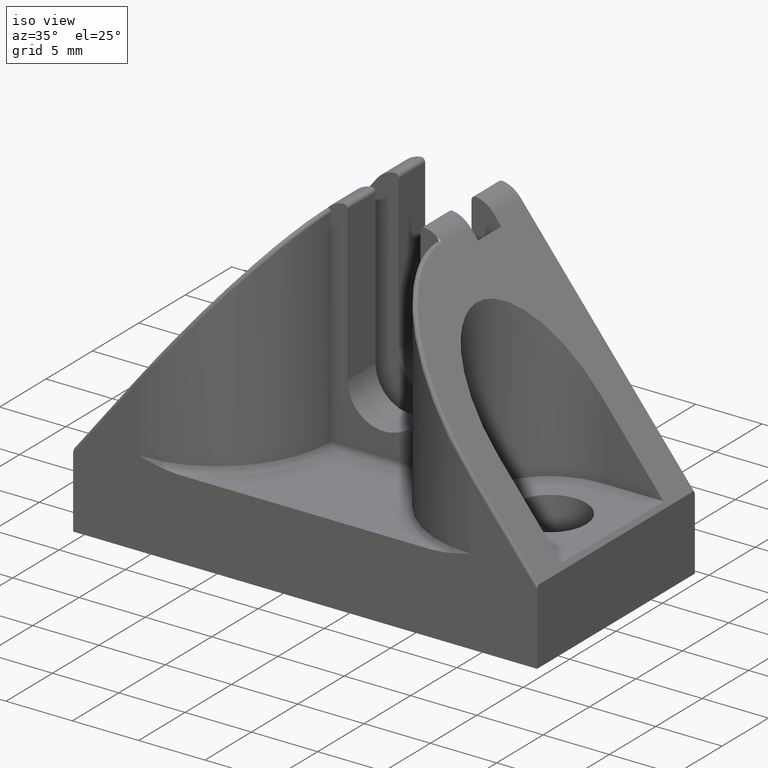
[diagram: clean part render]
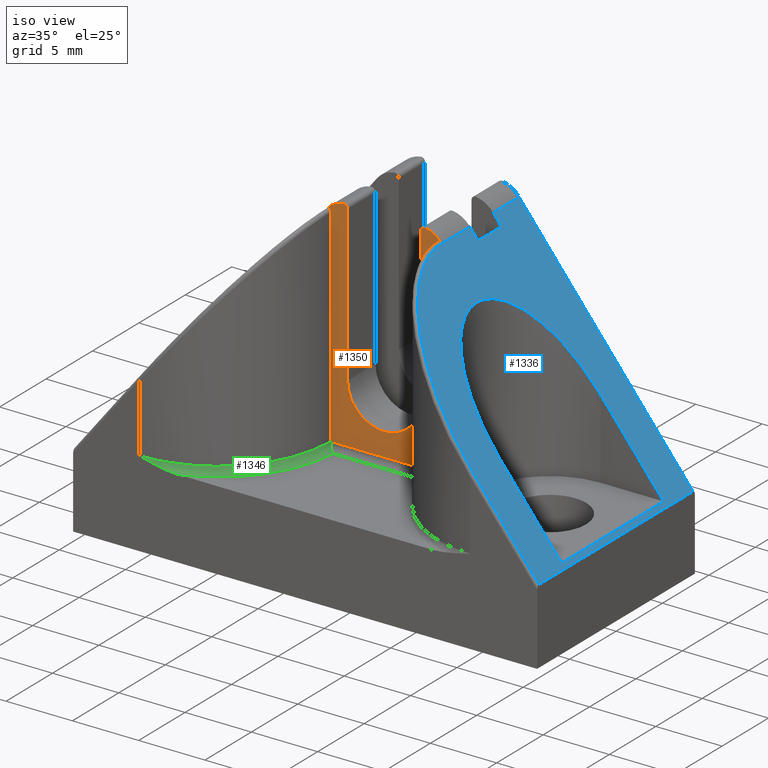
[diagram: same view with three faces highlighted in distinct colors, each labeled with its STEP entity id]
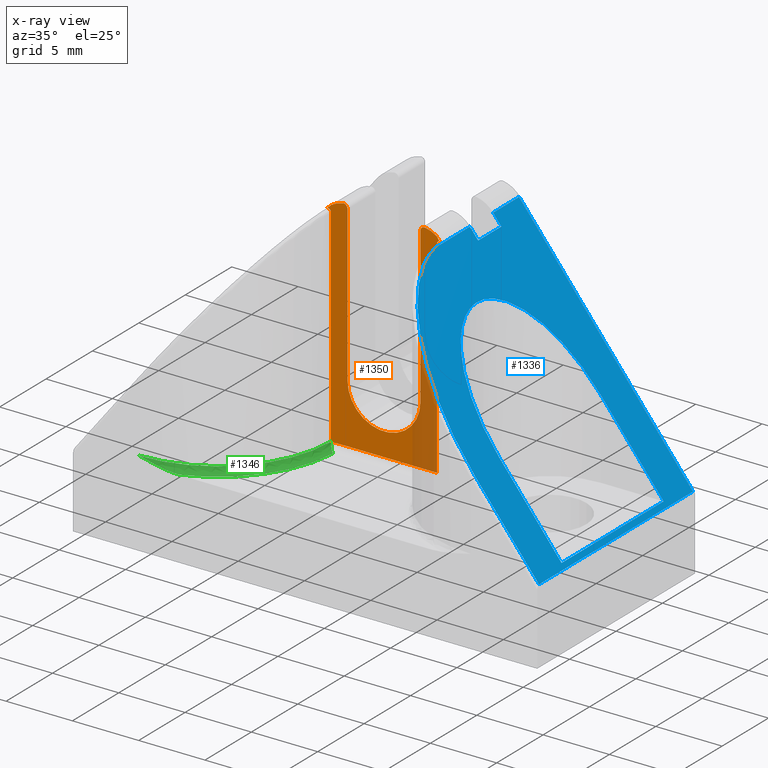
[diagram: x-ray of the same camera — body ghosted, the three highlighted faces saturated]
A machine part, iso view with three faces highlighted in distinct colors.
The next image is the same camera in x-ray (body ghosted, the three faces saturated) — at least one of them is partly hidden behind the body in this view.
Their STEP definitions:

[orange] entity #1350 — the highlighted planar face has unit normal (0, 1, 0).
#16=B_SPLINE_CURVE_WITH_KNOTS('',3,(#2112,#2113,#2114,#2115,#2116,#2117,
#2118,#2119,#2120,#2121,#2122,#2123,#2124,#2125,#2126,#2127,#2128,#2129,
#2130,#2131,#2132,#2133,#2134,#2135,#2136,#2137,#2138,#2139,#2140,#2141,
#2142,#2143,#2144,#2145,#2146,#2147,#2148,#2149,#2150,#2151,#2152,#2153,
#2154,#2155,#2156,#2157),.UNSPECIFIED.,.F.,.F.,(4,3,3,3,3,3,3,3,3,3,3,3,
3,3,3,4),(0.,0.0515835369594768,0.0613108971198886,0.091839566359771,0.122514240516175,
0.17631840629407,0.235197563098057,0.241804414812378,0.245047180752854,
0.301644032906494,0.353852926474957,0.367571882050692,0.391769263267377,
0.428741323403689,0.476665563281763,0.490066458344634),.UNSPECIFIED.);
#21=B_SPLINE_CURVE_WITH_KNOTS('',3,(#2640,#2641,#2642,#2643,#2644,#2645,
#2646,#2647,#2648,#2649,#2650,#2651,#2652,#2653,#2654,#2655,#2656,#2657,
#2658,#2659,#2660,#2661,#2662,#2663,#2664,#2665,#2666,#2667,#2668,#2669,
#2670,#2671,#2672,#2673,#2674,#2675,#2676,#2677,#2678,#2679,#2680,#2681,
#2682,#2683,#2684,#2685),.UNSPECIFIED.,.F.,.F.,(4,3,3,3,3,3,3,3,3,3,3,3,
3,3,3,4),(0.,0.0515664612205248,0.0612769238793133,0.091821903620932,0.122446111840318,
0.176255297236443,0.235139198247807,0.241786752073326,0.244910810754444,
0.301589247821051,0.353855952278427,0.367367635653073,0.391751600528659,
0.428504171241136,0.476526545953214,0.48979478608267),.UNSPECIFIED.);
#81=PLANE('',#1492);
#141=FACE_OUTER_BOUND('',#225,.T.);
#225=EDGE_LOOP('',(#1112,#1113,#1114,#1115,#1116,#1117,#1118,#1119,#1120,
#1121,#1122,#1123));
#258=CIRCLE('',#1401,0.299599217095519);
#260=CIRCLE('',#1405,2.74999999998909);
#262=CIRCLE('',#1409,0.299543686002835);
#272=CIRCLE('',#1433,1.99227204643511);
#275=CIRCLE('',#1439,2.00265221536747);
#338=LINE('',#1950,#440);
#342=LINE('',#1962,#444);
#403=LINE('',#3577,#505);
#408=LINE('',#3673,#510);
#409=LINE('',#3676,#511);
#440=VECTOR('',#1557,11.6839999999534);
#444=VECTOR('',#1569,11.6840115200562);
#505=VECTOR('',#1790,8.00020000026234);
#510=VECTOR('',#1803,15.6477603507119);
#511=VECTOR('',#1808,15.6489176530045);
#539=VERTEX_POINT('',#1938);
#541=VERTEX_POINT('',#1942);
#543=VERTEX_POINT('',#1948);
#545=VERTEX_POINT('',#1954);
#547=VERTEX_POINT('',#1960);
#549=VERTEX_POINT('',#1966);
#572=VERTEX_POINT('',#2096);
#574=VERTEX_POINT('',#2111);
#582=VERTEX_POINT('',#2625);
#583=VERTEX_POINT('',#2639);
#622=VERTEX_POINT('',#3531);
#627=VERTEX_POINT('',#3561);
#665=EDGE_CURVE('',#539,#541,#258,.T.);
#668=EDGE_CURVE('',#541,#543,#338,.T.);
#671=EDGE_CURVE('',#543,#545,#260,.T.);
#674=EDGE_CURVE('',#545,#547,#342,.T.);
#677=EDGE_CURVE('',#547,#549,#262,.T.);
#710=EDGE_CURVE('',#572,#574,#16,.T.);
#714=EDGE_CURVE('',#549,#574,#272,.T.);
#723=EDGE_CURVE('',#583,#582,#21,.T.);
#726=EDGE_CURVE('',#539,#582,#275,.T.);
#795=EDGE_CURVE('',#622,#627,#403,.T.);
#803=EDGE_CURVE('',#622,#583,#408,.T.);
#804=EDGE_CURVE('',#627,#572,#409,.T.);
#1112=ORIENTED_EDGE('',*,*,#804,.F.);
#1113=ORIENTED_EDGE('',*,*,#795,.F.);
#1114=ORIENTED_EDGE('',*,*,#803,.T.);
#1115=ORIENTED_EDGE('',*,*,#723,.T.);
#1116=ORIENTED_EDGE('',*,*,#726,.F.);
#1117=ORIENTED_EDGE('',*,*,#665,.T.);
#1118=ORIENTED_EDGE('',*,*,#668,.T.);
#1119=ORIENTED_EDGE('',*,*,#671,.T.);
#1120=ORIENTED_EDGE('',*,*,#674,.T.);
#1121=ORIENTED_EDGE('',*,*,#677,.T.);
#1122=ORIENTED_EDGE('',*,*,#714,.T.);
#1123=ORIENTED_EDGE('',*,*,#710,.F.);
#1350=ADVANCED_FACE('',(#141),#81,.F.);
#1401=AXIS2_PLACEMENT_3D('',#1944,#1551,#1552);
#1405=AXIS2_PLACEMENT_3D('',#1956,#1563,#1564);
#1409=AXIS2_PLACEMENT_3D('',#1968,#1575,#1576);
#1433=AXIS2_PLACEMENT_3D('',#2175,#1645,#1646);
#1439=AXIS2_PLACEMENT_3D('',#2701,#1660,#1661);
#1492=AXIS2_PLACEMENT_3D('',#3675,#1806,#1807);
#1551=DIRECTION('center_axis',(0.,-1.,0.));
#1552=DIRECTION('ref_axis',(0.139172969097552,0.,0.990268087273629));
#1557=DIRECTION('',(0.,0.,-1.));
#1563=DIRECTION('center_axis',(0.,1.,0.));
#1564=DIRECTION('ref_axis',(-1.,0.,0.));
#1569=DIRECTION('',(0.,0.,1.));
#1575=DIRECTION('center_axis',(0.,-1.,0.));
#1576=DIRECTION('ref_axis',(1.,0.,0.));
#1645=DIRECTION('center_axis',(0.,-1.,0.));
#1646=DIRECTION('ref_axis',(-0.784751051077607,0.,0.619811090440137));
#1660=DIRECTION('center_axis',(0.,1.,0.));
#1661=DIRECTION('ref_axis',(0.783976784921792,0.,0.620790142241072));
#1790=DIRECTION('',(-1.,0.,0.));
#1803=DIRECTION('',(0.,0.,1.));
#1806=DIRECTION('center_axis',(0.,1.,0.));
#1807=DIRECTION('ref_axis',(0.,0.,1.));
#1808=DIRECTION('',(0.,0.,1.));
#1938=CARTESIAN_POINT('',(-9.40916095850935,5.0000000103E-5,22.9806698900124));
#1942=CARTESIAN_POINT('',(-9.75045628818725,5.0000000103E-5,22.6839863463506));
#1944=CARTESIAN_POINT('Origin',(-9.45085707109183,5.0000000103E-5,22.6839863463506));
#1948=CARTESIAN_POINT('',(-9.75045628818725,5.0000000102E-5,10.9999863463972));
#1950=CARTESIAN_POINT('',(-9.75045628818725,5.0000000103E-5,22.6839863463506));
#1954=CARTESIAN_POINT('',(-15.2504562881654,5.0000000102E-5,10.9999863463972));
#1956=CARTESIAN_POINT('Origin',(-12.5004562881763,5.0000000102E-5,10.9999863463972));
#1960=CARTESIAN_POINT('',(-15.2504562881659,5.0000000103E-5,22.6839978664534));
#1962=CARTESIAN_POINT('',(-15.2504562881654,5.0000000102E-5,10.9999863463972));
#1966=CARTESIAN_POINT('',(-15.5909549561825,5.0000000103E-5,22.9807285680549));
#1968=CARTESIAN_POINT('Origin',(-15.5499999741687,5.0000000103E-5,22.6839978664534));
#2096=CARTESIAN_POINT('',(-16.5001000000906,5.00004013524431E-5,22.1489157063757));
#2111=CARTESIAN_POINT('',(-16.8542660643739,5.0000000102E-5,22.2763238171688));
#2112=CARTESIAN_POINT('Ctrl Pts',(-16.5001000000953,5.0000000103053E-5,
22.148915706376));
#2113=CARTESIAN_POINT('Ctrl Pts',(-16.5001000000967,5.00000001022286E-5,
22.1659636453831));
#2114=CARTESIAN_POINT('Ctrl Pts',(-16.5023331335791,4.99998304713899E-5,
22.183190630861));
#2115=CARTESIAN_POINT('Ctrl Pts',(-16.5067096027143,4.99999335324173E-5,
22.199865664115));
#2116=CARTESIAN_POINT('Ctrl Pts',(-16.50753489493,4.99999529671399E-5,22.2030101567905));
#2117=CARTESIAN_POINT('Ctrl Pts',(-16.5084362644401,4.99999827736273E-5,
22.2061349710763));
#2118=CARTESIAN_POINT('Ctrl Pts',(-16.5094129168669,5.00000268851428E-5,
22.2092351588684));
#2119=CARTESIAN_POINT('Ctrl Pts',(-16.5124780751839,5.00001653261839E-5,
22.2189648908947));
#2120=CARTESIAN_POINT('Ctrl Pts',(-16.5162851562881,5.000044251486E-5,22.2284519248075));
#2121=CARTESIAN_POINT('Ctrl Pts',(-16.5208026729912,5.0001374224741E-5,
22.2375943600103));
#2122=CARTESIAN_POINT('Ctrl Pts',(-16.5253417949481,5.00023103905719E-5,
22.2467805193755));
#2123=CARTESIAN_POINT('Ctrl Pts',(-16.5305822741439,5.00027976795366E-5,
22.2555883132228));
#2124=CARTESIAN_POINT('Ctrl Pts',(-16.5364843629972,5.00028112556875E-5,
22.263937111026));
#2125=CARTESIAN_POINT('Ctrl Pts',(-16.5468367783309,5.00028350686047E-5,
22.2785811166562));
#2126=CARTESIAN_POINT('Ctrl Pts',(-16.5592212469659,5.0001442514182E-5,
22.2918131944879));
#2127=CARTESIAN_POINT('Ctrl Pts',(-16.5730849437574,5.00003721780167E-5,
22.3032187419622));
#2128=CARTESIAN_POINT('Ctrl Pts',(-16.5882563113546,4.99992008841215E-5,
22.3157000992783));
#2129=CARTESIAN_POINT('Ctrl Pts',(-16.6052001235232,4.99984314644391E-5,
22.3259958742043));
#2130=CARTESIAN_POINT('Ctrl Pts',(-16.6232502587301,4.99994523110383E-5,
22.3335503728055));
#2131=CARTESIAN_POINT('Ctrl Pts',(-16.6252756710018,4.99995668606085E-5,
22.3343980658558));
#2132=CARTESIAN_POINT('Ctrl Pts',(-16.6273150579578,4.99997029525478E-5,
22.3352112137034));
#2133=CARTESIAN_POINT('Ctrl Pts',(-16.6293675090724,4.9999861782778E-5,
22.3359890060366));
#2134=CARTESIAN_POINT('Ctrl Pts',(-16.6303748903269,4.99999397396148E-5,
22.336370761008));
#2135=CARTESIAN_POINT('Ctrl Pts',(-16.6313854998172,5.00000188521963E-5,
22.3367440293331));
#2136=CARTESIAN_POINT('Ctrl Pts',(-16.6323992332488,5.00000981093044E-5,
22.3371087109772));
#2137=CARTESIAN_POINT('Ctrl Pts',(-16.6500921911133,5.00014814045862E-5,
22.3434735962246));
#2138=CARTESIAN_POINT('Ctrl Pts',(-16.6687369652157,5.00029538243691E-5,
22.3472271259673));
#2139=CARTESIAN_POINT('Ctrl Pts',(-16.6875734707007,5.00040675263182E-5,
22.3483848975819));
#2140=CARTESIAN_POINT('Ctrl Pts',(-16.7049495803719,5.0005094882864E-5,
22.3494529070683));
#2141=CARTESIAN_POINT('Ctrl Pts',(-16.7224906419556,5.00057913688689E-5,
22.3483114665289));
#2142=CARTESIAN_POINT('Ctrl Pts',(-16.7395803255148,5.00055949047959E-5,
22.3449343237921));
#2143=CARTESIAN_POINT('Ctrl Pts',(-16.7440709897202,5.00055432798388E-5,
22.3440469104031));
#2144=CARTESIAN_POINT('Ctrl Pts',(-16.748530298736,5.00054298476402E-5,
22.3430049294425));
#2145=CARTESIAN_POINT('Ctrl Pts',(-16.7529465969108,5.00052447933248E-5,
22.3418074861574));
#2146=CARTESIAN_POINT('Ctrl Pts',(-16.7607360273754,5.00049183960425E-5,
22.3396954455219));
#2147=CARTESIAN_POINT('Ctrl Pts',(-16.7683917488528,5.00043684545248E-5,
22.337099797268));
#2148=CARTESIAN_POINT('Ctrl Pts',(-16.7758739325814,5.0003560715445E-5,
22.3340377483737));
#2149=CARTESIAN_POINT('Ctrl Pts',(-16.7873062336344,5.00023265414837E-5,
22.3293591323349));
#2150=CARTESIAN_POINT('Ctrl Pts',(-16.7982904416499,5.00019042621349E-5,
22.32360739929));
#2151=CARTESIAN_POINT('Ctrl Pts',(-16.808661449125,5.00014744039998E-5,
22.316887172995));
#2152=CARTESIAN_POINT('Ctrl Pts',(-16.8221046451,5.00009172096129E-5,22.3081762238131));
#2153=CARTESIAN_POINT('Ctrl Pts',(-16.8345152210434,5.00003423392273E-5,
22.2978379042557));
#2154=CARTESIAN_POINT('Ctrl Pts',(-16.8454487672305,5.00001049241557E-5,
22.2862876569018));
#2155=CARTESIAN_POINT('Ctrl Pts',(-16.8485060782174,5.00000385365725E-5,
22.2830578998283));
#2156=CARTESIAN_POINT('Ctrl Pts',(-16.8514481749034,5.00000001024965E-5,
22.2797335131327));
#2157=CARTESIAN_POINT('Ctrl Pts',(-16.8542660643739,5.00000001019998E-5,
22.2763238171688));
#2175=CARTESIAN_POINT('Origin',(-15.3185624149878,5.0000000102E-5,21.0071657465292));
#2625=CARTESIAN_POINT('',(-8.1459073378287,5.0000000102E-5,22.2753760444293));
#2639=CARTESIAN_POINT('',(-8.49989999980917,5.00004013525835E-5,22.1477584040847));
#2640=CARTESIAN_POINT('Ctrl Pts',(-8.49989999980434,5.00000001030232E-5,
22.1477584040851));
#2641=CARTESIAN_POINT('Ctrl Pts',(-8.49989999980293,5.00000001021751E-5,
22.1648007557525));
#2642=CARTESIAN_POINT('Ctrl Pts',(-8.497668380429,4.99998254502754E-5,22.1820220429063));
#2643=CARTESIAN_POINT('Ctrl Pts',(-8.4932947701384,4.99999289782604E-5,
22.1986918957996));
#2644=CARTESIAN_POINT('Ctrl Pts',(-8.49247117708187,4.99999484735798E-5,
22.201830990091));
#2645=CARTESIAN_POINT('Ctrl Pts',(-8.49157176830396,4.99999785051056E-5,
22.2049504797342));
#2646=CARTESIAN_POINT('Ctrl Pts',(-8.49059733368376,5.00000230579975E-5,
22.2080454417498));
#2647=CARTESIAN_POINT('Ctrl Pts',(-8.48753217739003,5.00001632023889E-5,
22.2177808740755));
#2648=CARTESIAN_POINT('Ctrl Pts',(-8.4837242620355,5.00004448707077E-5,
22.2272734809051));
#2649=CARTESIAN_POINT('Ctrl Pts',(-8.47920511638601,5.00013859501667E-5,
22.2364211869844));
#2650=CARTESIAN_POINT('Ctrl Pts',(-8.47467424884201,5.00023294706034E-5,
22.2455926206561));
#2651=CARTESIAN_POINT('Ctrl Pts',(-8.46944427584904,5.00028247307526E-5,
22.2543870308446));
#2652=CARTESIAN_POINT('Ctrl Pts',(-8.46355473128819,5.00028463796868E-5,
22.2627241776592));
#2653=CARTESIAN_POINT('Ctrl Pts',(-8.45320633002004,5.00028844185925E-5,
22.2773732120246));
#2654=CARTESIAN_POINT('Ctrl Pts',(-8.44082507656962,5.00015013030239E-5,
22.2906107426485));
#2655=CARTESIAN_POINT('Ctrl Pts',(-8.42696372452981,5.0000430532524E-5,
22.3020217848995));
#2656=CARTESIAN_POINT('Ctrl Pts',(-8.41179511576187,4.99992587782286E-5,
22.3145089964675));
#2657=CARTESIAN_POINT('Ctrl Pts',(-8.39485306546235,4.99984769926659E-5,
22.3248107325373));
#2658=CARTESIAN_POINT('Ctrl Pts',(-8.37680356872637,4.99994682790523E-5,
22.332370835358));
#2659=CARTESIAN_POINT('Ctrl Pts',(-8.37476591498715,4.99995801879017E-5,
22.3332243146548));
#2660=CARTESIAN_POINT('Ctrl Pts',(-8.37271410180622,4.9999713685031E-5,
22.3340428228983));
#2661=CARTESIAN_POINT('Ctrl Pts',(-8.37064905621355,4.99998699818608E-5,
22.3348255342224));
#2662=CARTESIAN_POINT('Ctrl Pts',(-8.36967857537503,4.99999434345142E-5,
22.3351933742086));
#2663=CARTESIAN_POINT('Ctrl Pts',(-8.36870509588795,5.00000181293578E-5,
22.3355533368876));
#2664=CARTESIAN_POINT('Ctrl Pts',(-8.36772871099204,5.00000931535686E-5,
22.3359053327085));
#2665=CARTESIAN_POINT('Ctrl Pts',(-8.35001458474654,5.00014542851976E-5,
22.3422914396983));
#2666=CARTESIAN_POINT('Ctrl Pts',(-8.33134391071393,5.00029687204072E-5,
22.3460595219125));
#2667=CARTESIAN_POINT('Ctrl Pts',(-8.31248036209075,5.00041255354368E-5,
22.3472243757583));
#2668=CARTESIAN_POINT('Ctrl Pts',(-8.29508511317542,5.00051923063711E-5,
22.3482985597839));
#2669=CARTESIAN_POINT('Ctrl Pts',(-8.27752405181213,5.00059292765666E-5,
22.347158415492));
#2670=CARTESIAN_POINT('Ctrl Pts',(-8.26041583437638,5.00057285311684E-5,
22.3437770981475));
#2671=CARTESIAN_POINT('Ctrl Pts',(-8.25599311785931,5.00056766356398E-5,
22.3429029797231));
#2672=CARTESIAN_POINT('Ctrl Pts',(-8.25160084809794,5.00055619490493E-5,
22.3418788946202));
#2673=CARTESIAN_POINT('Ctrl Pts',(-8.24725016277168,5.00053743724695E-5,
22.3407039823222));
#2674=CARTESIAN_POINT('Ctrl Pts',(-8.23939866453577,5.00050358609302E-5,
22.3385836676721));
#2675=CARTESIAN_POINT('Ctrl Pts',(-8.23168249650268,5.00044591946302E-5,
22.3359721729562));
#2676=CARTESIAN_POINT('Ctrl Pts',(-8.22414245056067,5.00036049539144E-5,
22.3328870896297));
#2677=CARTESIAN_POINT('Ctrl Pts',(-8.21277776589709,5.00023174052126E-5,
22.328237118073));
#2678=CARTESIAN_POINT('Ctrl Pts',(-8.2018557517529,5.00018697909732E-5,
22.3225268779396));
#2679=CARTESIAN_POINT('Ctrl Pts',(-8.19153849606653,5.00014360834902E-5,
22.3158589285325));
#2680=CARTESIAN_POINT('Ctrl Pts',(-8.17805755829902,5.00008693840016E-5,
22.3071463198965));
#2681=CARTESIAN_POINT('Ctrl Pts',(-8.1656114643377,5.00003210074339E-5,
22.2967984743031));
#2682=CARTESIAN_POINT('Ctrl Pts',(-8.15464763499973,5.00000973534386E-5,
22.2852324460935));
#2683=CARTESIAN_POINT('Ctrl Pts',(-8.15161840703533,5.00000355594325E-5,
22.2820368348696));
#2684=CARTESIAN_POINT('Ctrl Pts',(-8.14870206125562,5.00000001025078E-5,
22.2787483595003));
#2685=CARTESIAN_POINT('Ctrl Pts',(-8.14590733782919,5.00000001020031E-5,
22.2753760444289));
#2701=CARTESIAN_POINT('Origin',(-9.68787601339227,5.0000000102E-5,20.9975073112255));
#3531=CARTESIAN_POINT('',(-8.49989999981881,5.0000000102E-5,6.49999805322659));
#3561=CARTESIAN_POINT('',(-16.5001000000811,5.0000000102E-5,6.49999805322659));
#3577=CARTESIAN_POINT('',(-8.49989999981881,5.0000000102E-5,6.49999805322659));
#3673=CARTESIAN_POINT('',(-8.49989999981881,5.0000000102E-5,6.49999805322659));
#3675=CARTESIAN_POINT('Origin',(-8.49989999981881,5.0000000102E-5,5.99999805322659));
#3676=CARTESIAN_POINT('',(-16.5001000000811,5.0000000102E-5,6.49999805322659));

[blue] entity #1336 — the highlighted planar face has unit normal (0.784, 0, 0.6208).
#23=B_SPLINE_CURVE_WITH_KNOTS('',3,(#2837,#2838,#2839,#2840,#2841,#2842,
#2843,#2844,#2845,#2846,#2847,#2848,#2849,#2850,#2851,#2852,#2853,#2854,
#2855,#2856,#2857,#2858,#2859,#2860,#2861,#2862,#2863,#2864,#2865,#2866,
#2867,#2868,#2869,#2870,#2871,#2872,#2873,#2874,#2875,#2876,#2877,#2878,
#2879,#2880,#2881,#2882,#2883,#2884,#2885,#2886,#2887,#2888,#2889,#2890,
#2891,#2892,#2893,#2894,#2895,#2896,#2897,#2898,#2899,#2900,#2901,#2902,
#2903,#2904,#2905,#2906,#2907,#2908,#2909,#2910,#2911,#2912,#2913,#2914,
#2915,#2916,#2917,#2918,#2919,#2920,#2921,#2922,#2923,#2924,#2925,#2926,
#2927,#2928,#2929,#2930,#2931,#2932,#2933,#2934,#2935,#2936,#2937,#2938,
#2939,#2940,#2941,#2942,#2943,#2944,#2945,#2946,#2947,#2948),
 .UNSPECIFIED.,.F.,.F.,(4,3,3,3,3,3,3,3,3,3,3,3,3,3,3,3,3,3,3,3,3,3,3,3,
3,3,3,3,3,3,3,3,3,3,3,3,3,4),(-17.4686220538162,-16.7309776322777,-16.4310766051136,
-16.2828543611951,-15.6166622455787,-15.3935223622807,-15.0970866685741,
-14.415872493435,-13.911318975953,-13.3184286298419,-12.7255512833319,-12.0973200163173,
-11.5397835907109,-11.2433353663514,-10.643796376755,-10.3540158980898,
-9.76113205177928,-9.16824820546875,-8.57536435915822,-7.98248051284769,
-7.39679090175992,-7.09313546007442,-6.79671282022662,-6.23862860181666,
-5.66347688245699,-5.61094512760556,-5.01797511675675,-4.47394462959306,
-4.4251774349845,-3.873040816014,-3.3012525966851,-3.23940974236343,-2.94295392390265,
-2.39427380689413,-2.05364204974237,-1.90541783009847,-1.3866213953771,
-0.867874357121302),.UNSPECIFIED.);
#53=FACE_BOUND('',#211,.T.);
#58=ELLIPSE('',#1419,8.85959622381051,5.49994999997799);
#78=PLANE('',#1475);
#127=FACE_OUTER_BOUND('',#210,.T.);
#210=EDGE_LOOP('',(#1040,#1041,#1042,#1043,#1044,#1045,#1046,#1047,#1048));
#211=EDGE_LOOP('',(#1049,#1050,#1051,#1052));
#351=LINE('',#1993,#453);
#355=LINE('',#2005,#457);
#357=LINE('',#2008,#459);
#360=LINE('',#2022,#462);
#368=LINE('',#2700,#470);
#369=LINE('',#2705,#471);
#377=LINE('',#3079,#479);
#382=LINE('',#3092,#484);
#399=LINE('',#3152,#501);
#400=LINE('',#3157,#502);
#401=LINE('',#3158,#503);
#453=VECTOR('',#1600,7.63920764803685);
#457=VECTOR('',#1612,7.63920764803686);
#459=VECTOR('',#1616,10.999899999956);
#462=VECTOR('',#1631,0.995252866083672);
#470=VECTOR('',#1659,3.64706815531262);
#471=VECTOR('',#1664,7.80168171109317);
#479=VECTOR('',#1686,16.5998999939716);
#484=VECTOR('',#1697,21.130885840722);
#501=VECTOR('',#1758,2.79999999700795);
#502=VECTOR('',#1765,0.995252866083672);
#503=VECTOR('',#1766,2.49999999998997);
#557=VERTEX_POINT('',#1991);
#558=VERTEX_POINT('',#1992);
#560=VERTEX_POINT('',#1998);
#562=VERTEX_POINT('',#2004);
#566=VERTEX_POINT('',#2020);
#567=VERTEX_POINT('',#2021);
#580=VERTEX_POINT('',#2622);
#584=VERTEX_POINT('',#2703);
#585=VERTEX_POINT('',#2704);
#594=VERTEX_POINT('',#3078);
#599=VERTEX_POINT('',#3090);
#620=VERTEX_POINT('',#3151);
#621=VERTEX_POINT('',#3156);
#688=EDGE_CURVE('',#557,#558,#351,.T.);
#691=EDGE_CURVE('',#558,#560,#58,.T.);
#694=EDGE_CURVE('',#560,#562,#355,.T.);
#696=EDGE_CURVE('',#557,#562,#357,.T.);
#702=EDGE_CURVE('',#566,#567,#360,.T.);
#725=EDGE_CURVE('',#566,#580,#368,.T.);
#727=EDGE_CURVE('',#584,#585,#369,.T.);
#731=EDGE_CURVE('',#585,#580,#23,.T.);
#741=EDGE_CURVE('',#594,#584,#377,.T.);
#748=EDGE_CURVE('',#594,#599,#382,.T.);
#778=EDGE_CURVE('',#599,#620,#399,.T.);
#781=EDGE_CURVE('',#620,#621,#400,.T.);
#782=EDGE_CURVE('',#567,#621,#401,.T.);
#1040=ORIENTED_EDGE('',*,*,#781,.T.);
#1041=ORIENTED_EDGE('',*,*,#782,.F.);
#1042=ORIENTED_EDGE('',*,*,#702,.F.);
#1043=ORIENTED_EDGE('',*,*,#725,.T.);
#1044=ORIENTED_EDGE('',*,*,#731,.F.);
#1045=ORIENTED_EDGE('',*,*,#727,.F.);
#1046=ORIENTED_EDGE('',*,*,#741,.F.);
#1047=ORIENTED_EDGE('',*,*,#748,.T.);
#1048=ORIENTED_EDGE('',*,*,#778,.T.);
#1049=ORIENTED_EDGE('',*,*,#696,.T.);
#1050=ORIENTED_EDGE('',*,*,#694,.F.);
#1051=ORIENTED_EDGE('',*,*,#691,.F.);
#1052=ORIENTED_EDGE('',*,*,#688,.F.);
#1336=ADVANCED_FACE('',(#127,#53),#78,.T.);
#1419=AXIS2_PLACEMENT_3D('',#1999,#1605,#1606);
#1475=AXIS2_PLACEMENT_3D('',#3155,#1763,#1764);
#1600=DIRECTION('',(-0.620790142241116,0.,0.783976784921757));
#1605=DIRECTION('center_axis',(0.783976784921774,3.801243E-17,0.620790142241094));
#1606=DIRECTION('ref_axis',(-0.620790142241094,4.800473E-17,0.783976784921774));
#1612=DIRECTION('',(0.620790142241115,0.,-0.783976784921757));
#1616=DIRECTION('',(0.,-1.,0.));
#1631=DIRECTION('',(0.620790142241147,5.57759270261584E-16,-0.783976784921733));
#1659=DIRECTION('',(0.,-1.,0.));
#1664=DIRECTION('',(-0.620790142241106,0.,0.783976784921765));
#1686=DIRECTION('',(0.,-1.,0.));
#1697=DIRECTION('',(-0.620790142241094,5.254029731615E-17,0.783976784921774));
#1758=DIRECTION('',(0.,-1.,0.));
#1763=DIRECTION('center_axis',(0.783976784921774,3.801243E-17,0.620790142241094));
#1764=DIRECTION('ref_axis',(0.620790142241094,0.,-0.783976784921774));
#1765=DIRECTION('',(0.620790142241147,0.,-0.783976784921733));
#1766=DIRECTION('',(0.,1.,0.));
#1991=CARTESIAN_POINT('',(4.74234480243422,5.499999999978,5.99999805322659));
#1992=CARTESIAN_POINT('',(0.,5.499999999978,11.9889595044842));
#1993=CARTESIAN_POINT('',(4.74234480243422,5.499999999978,5.99999805322659));
#1998=CARTESIAN_POINT('',(0.,-5.49989999997797,11.9889595044842));
#1999=CARTESIAN_POINT('Origin',(8.881784E-16,5.0000000017E-5,11.9889595044842));
#2004=CARTESIAN_POINT('',(4.74234480243422,-5.49989999997797,5.99999805322659));
#2005=CARTESIAN_POINT('',(0.,-5.49989999997797,11.9889595044842));
#2008=CARTESIAN_POINT('',(4.74234480243422,5.499999999978,5.99999805322659));
#2020=CARTESIAN_POINT('',(-8.11784316827197,2.99999999998821,22.2407340648629));
#2021=CARTESIAN_POINT('',(-7.49999999996999,2.99999999998821,21.4604789227264));
#2022=CARTESIAN_POINT('',(-8.11784316827197,2.99999999998821,22.2407340648629));
#2622=CARTESIAN_POINT('',(-8.11784316827243,-0.647068155324411,22.2407340648633));
#2700=CARTESIAN_POINT('',(-8.11784316827197,2.99999999998821,22.2407340648629));
#2703=CARTESIAN_POINT('',(5.00000245847014,-8.29989999698546,5.67461012090462));
#2704=CARTESIAN_POINT('',(0.156795359320768,-8.29989999698546,11.7909474657504));
#2705=CARTESIAN_POINT('',(5.00000245847014,-8.29989999698546,5.67461012090462));
#2837=CARTESIAN_POINT('Ctrl Pts',(0.156795359320768,-8.29989999698546,11.7909474657508));
#2838=CARTESIAN_POINT('Ctrl Pts',(-0.0267147085212732,-8.29996892434497,
12.0226966885529));
#2839=CARTESIAN_POINT('Ctrl Pts',(-0.210227301756684,-8.29386684105631,
12.2544491006378));
#2840=CARTESIAN_POINT('Ctrl Pts',(-0.393333886742365,-8.28168120264675,
12.4856887772638));
#2841=CARTESIAN_POINT('Ctrl Pts',(-0.467778770095782,-8.27672693827632,
12.5797029316671));
#2842=CARTESIAN_POINT('Ctrl Pts',(-0.542156573835494,-8.27076768670283,
12.6736323732627));
#2843=CARTESIAN_POINT('Ctrl Pts',(-0.616440046452638,-8.26381176475925,
12.7674426868547));
#2844=CARTESIAN_POINT('Ctrl Pts',(-0.653153701959192,-8.260373889375,12.8138072335679));
#2845=CARTESIAN_POINT('Ctrl Pts',(-0.689844317922258,-8.25669257796101,
12.860142684317));
#2846=CARTESIAN_POINT('Ctrl Pts',(-0.726509363900958,-8.25276779426625,
12.906445843461));
#2847=CARTESIAN_POINT('Ctrl Pts',(-0.891302204057707,-8.23512766223326,
13.1145576540395));
#2848=CARTESIAN_POINT('Ctrl Pts',(-1.05556160678968,-8.21255340266103,13.3219958037808));
#2849=CARTESIAN_POINT('Ctrl Pts',(-1.21900264071639,-8.18508375166976,13.5284004611502));
#2850=CARTESIAN_POINT('Ctrl Pts',(-1.27374692901041,-8.17588284014177,13.5975353399306));
#2851=CARTESIAN_POINT('Ctrl Pts',(-1.32839945370638,-8.16613313667744,13.6665543332949));
#2852=CARTESIAN_POINT('Ctrl Pts',(-1.38294967178955,-8.15583738278313,13.7354441267503));
#2853=CARTESIAN_POINT('Ctrl Pts',(-1.45541825741541,-8.14215973402404,13.8269624757358));
#2854=CARTESIAN_POINT('Ctrl Pts',(-1.52770626455859,-8.1275183101441,13.9182527776456));
#2855=CARTESIAN_POINT('Ctrl Pts',(-1.59978317711509,-8.1119172609692,14.0092764946295));
#2856=CARTESIAN_POINT('Ctrl Pts',(-1.76541712598209,-8.0760657894001,14.2184505165158));
#2857=CARTESIAN_POINT('Ctrl Pts',(-1.92995375212894,-8.03513802237389,14.4262387631048));
#2858=CARTESIAN_POINT('Ctrl Pts',(-2.09308011935059,-7.98919722680833,14.6322460370769));
#2859=CARTESIAN_POINT('Ctrl Pts',(-2.21390259395475,-7.95517035120229,14.7848290256624));
#2860=CARTESIAN_POINT('Ctrl Pts',(-2.33395163489485,-7.91839432986621,14.9364352686495));
#2861=CARTESIAN_POINT('Ctrl Pts',(-2.45310501766811,-7.87891157271861,15.0869104124748));
#2862=CARTESIAN_POINT('Ctrl Pts',(-2.59311967994873,-7.83251620584557,15.2637306248261));
#2863=CARTESIAN_POINT('Ctrl Pts',(-2.73189142218604,-7.78238477942303,15.4389811916672));
#2864=CARTESIAN_POINT('Ctrl Pts',(-2.86923777732614,-7.72861028237199,15.6124316809658));
#2865=CARTESIAN_POINT('Ctrl Pts',(-3.00658112103615,-7.67483696437036,15.7858783672218));
#2866=CARTESIAN_POINT('Ctrl Pts',(-3.14249883466919,-7.61742031215597,15.9575246690836));
#2867=CARTESIAN_POINT('Ctrl Pts',(-3.27678381992672,-7.55641756296793,16.127109048477));
#2868=CARTESIAN_POINT('Ctrl Pts',(-3.41907636479455,-7.49177715354871,16.3068059287159));
#2869=CARTESIAN_POINT('Ctrl Pts',(-3.55954248204759,-7.42310654497868,16.4841962696818));
#2870=CARTESIAN_POINT('Ctrl Pts',(-3.6979535328277,-7.35051296571804,16.6589913303517));
#2871=CARTESIAN_POINT('Ctrl Pts',(-3.82078919314602,-7.28608833926594,16.814116709263));
#2872=CARTESIAN_POINT('Ctrl Pts',(-3.9420064819276,-7.21857450994621,16.967198296538));
#2873=CARTESIAN_POINT('Ctrl Pts',(-4.06145882001718,-7.14807346495474,17.1180509814202));
#2874=CARTESIAN_POINT('Ctrl Pts',(-4.12497293657689,-7.11058728711358,17.198261006307));
#2875=CARTESIAN_POINT('Ctrl Pts',(-4.18798422000683,-7.07225669599339,17.2778360188127));
#2876=CARTESIAN_POINT('Ctrl Pts',(-4.25047694691936,-7.03309782350105,17.3567561623887));
#2877=CARTESIAN_POINT('Ctrl Pts',(-4.37686268065485,-6.95390264229016,17.5163648199902));
#2878=CARTESIAN_POINT('Ctrl Pts',(-4.50112563516009,-6.8713175997527,17.6732926853602));
#2879=CARTESIAN_POINT('Ctrl Pts',(-4.62306829097572,-6.78543783520475,17.8272903164484));
#2880=CARTESIAN_POINT('Ctrl Pts',(-4.68200791256019,-6.7439288095864,17.9017233525385));
#2881=CARTESIAN_POINT('Ctrl Pts',(-4.74040585930336,-6.70165054599279,17.9754723240747));
#2882=CARTESIAN_POINT('Ctrl Pts',(-4.79824201465263,-6.65861637873091,18.0485118265373));
#2883=CARTESIAN_POINT('Ctrl Pts',(-4.91657338879226,-6.57056951399207,18.1979488809314));
#2884=CARTESIAN_POINT('Ctrl Pts',(-5.03255394369984,-6.47934848198435,18.3444171579928));
#2885=CARTESIAN_POINT('Ctrl Pts',(-5.14601623281343,-6.38509351784844,18.487705194601));
#2886=CARTESIAN_POINT('Ctrl Pts',(-5.25947852192703,-6.29083855371253,18.6309932312091));
#2887=CARTESIAN_POINT('Ctrl Pts',(-5.3704225087901,-6.19354967361325,18.7711009813363));
#2888=CARTESIAN_POINT('Ctrl Pts',(-5.47870691673337,-6.09339972936356,18.9078500309151));
#2889=CARTESIAN_POINT('Ctrl Pts',(-5.58699132467664,-5.99324978511387,19.044599080494));
#2890=CARTESIAN_POINT('Ctrl Pts',(-5.69261912776848,-5.89023113860436,19.1779931856231));
#2891=CARTESIAN_POINT('Ctrl Pts',(-5.79541943500301,-5.78446826822098,19.3078165331741));
#2892=CARTESIAN_POINT('Ctrl Pts',(-5.89821974223753,-5.6787053978376,19.4376398807251));
#2893=CARTESIAN_POINT('Ctrl Pts',(-5.99819267698765,-5.57019838992846,19.5638926264413));
#2894=CARTESIAN_POINT('Ctrl Pts',(-6.09520228544668,-5.4590879796034,19.6864030784784));
#2895=CARTESIAN_POINT('Ctrl Pts',(-6.19103474943389,-5.34932581722361,19.8074269509525));
#2896=CARTESIAN_POINT('Ctrl Pts',(-6.28396600107875,-5.23704168288149,19.924786971427));
#2897=CARTESIAN_POINT('Ctrl Pts',(-6.37388381777083,-5.12239017678335,20.0383414167676));
#2898=CARTESIAN_POINT('Ctrl Pts',(-6.42050242569238,-5.06294819067832,20.097214622989));
#2899=CARTESIAN_POINT('Ctrl Pts',(-6.46631153406278,-5.00287015305591,20.1550655370056));
#2900=CARTESIAN_POINT('Ctrl Pts',(-6.51129870527107,-4.94217948949502,20.2118784522457));
#2901=CARTESIAN_POINT('Ctrl Pts',(-6.55521432217826,-4.88293442341955,20.2673381345074));
#2902=CARTESIAN_POINT('Ctrl Pts',(-6.59834658625268,-4.82310560701896,20.3218085450373));
#2903=CARTESIAN_POINT('Ctrl Pts',(-6.64066818273854,-4.76272101707105,20.3752551888044));
#2904=CARTESIAN_POINT('Ctrl Pts',(-6.72034838229684,-4.64903305213563,20.4758808644569));
#2905=CARTESIAN_POINT('Ctrl Pts',(-6.79718754523799,-4.53334876777361,20.5729186809824));
#2906=CARTESIAN_POINT('Ctrl Pts',(-6.87106553916759,-4.41580490658552,20.6662169282518));
#2907=CARTESIAN_POINT('Ctrl Pts',(-6.94720289233,-4.29466628335922,20.7623684508358));
#2908=CARTESIAN_POINT('Ctrl Pts',(-7.02019528724668,-4.17155265078587,20.8545483022547));
#2909=CARTESIAN_POINT('Ctrl Pts',(-7.08994517263065,-4.04660952764054,20.9426332880997));
#2910=CARTESIAN_POINT('Ctrl Pts',(-7.09631581146658,-4.03519778827767,20.9506785720252));
#2911=CARTESIAN_POINT('Ctrl Pts',(-7.10265942282695,-4.02377078392664,20.9586897237828));
#2912=CARTESIAN_POINT('Ctrl Pts',(-7.10897594548843,-4.01232862359327,20.9666666660554));
#2913=CARTESIAN_POINT('Ctrl Pts',(-7.18027583869963,-3.88317135564743,21.0567091091316));
#2914=CARTESIAN_POINT('Ctrl Pts',(-7.24809933643626,-3.75216882919408,21.1423613218576));
#2915=CARTESIAN_POINT('Ctrl Pts',(-7.31241195923569,-3.61939345193484,21.2235797355674));
#2916=CARTESIAN_POINT('Ctrl Pts',(-7.37141667595361,-3.4975764091635,21.2980949595565));
#2917=CARTESIAN_POINT('Ctrl Pts',(-7.4274656448109,-3.37426921495679,21.3688774368051));
#2918=CARTESIAN_POINT('Ctrl Pts',(-7.48045909158768,-3.24972166919243,21.4358011783105));
#2919=CARTESIAN_POINT('Ctrl Pts',(-7.48520945354886,-3.23855715811149,21.4418002596173));
#2920=CARTESIAN_POINT('Ctrl Pts',(-7.48993527617733,-3.22738265329581,21.4477683509052));
#2921=CARTESIAN_POINT('Ctrl Pts',(-7.49463649505158,-3.21619831902358,21.4537053708485));
#2922=CARTESIAN_POINT('Ctrl Pts',(-7.54786315931021,-3.08957056116154,21.5209236339567));
#2923=CARTESIAN_POINT('Ctrl Pts',(-7.59794538168143,-2.96160611954179,21.5841709382397));
#2924=CARTESIAN_POINT('Ctrl Pts',(-7.64482305552267,-2.83249241581609,21.6433713485127));
#2925=CARTESIAN_POINT('Ctrl Pts',(-7.69336919561014,-2.69878330794723,21.7046788148363));
#2926=CARTESIAN_POINT('Ctrl Pts',(-7.73847911616263,-2.56384165961152,21.7616468045486));
#2927=CARTESIAN_POINT('Ctrl Pts',(-7.78009372885746,-2.42782201636673,21.814200648225));
#2928=CARTESIAN_POINT('Ctrl Pts',(-7.78459463731192,-2.41311055030689,21.8198847102407));
#2929=CARTESIAN_POINT('Ctrl Pts',(-7.78905466067829,-2.39838642416876,21.8255171394751));
#2930=CARTESIAN_POINT('Ctrl Pts',(-7.79347372540187,-2.38364979770712,21.8310978430387));
#2931=CARTESIAN_POINT('Ctrl Pts',(-7.81465737650968,-2.31300689632502,21.8578500371393));
#2932=CARTESIAN_POINT('Ctrl Pts',(-7.83489876455593,-2.24208974156236,21.8834122682978));
#2933=CARTESIAN_POINT('Ctrl Pts',(-7.85418836492526,-2.17090824074919,21.907772514293));
#2934=CARTESIAN_POINT('Ctrl Pts',(-7.88988953700089,-2.03916559390962,21.9528584319598));
#2935=CARTESIAN_POINT('Ctrl Pts',(-7.92233163394176,-1.90652039917095,21.9938285580212));
#2936=CARTESIAN_POINT('Ctrl Pts',(-7.95149009777737,-1.77316513000645,22.0306518857251));
#2937=CARTESIAN_POINT('Ctrl Pts',(-7.96959226416591,-1.69037547123658,22.053512555232));
#2938=CARTESIAN_POINT('Ctrl Pts',(-7.98642852861593,-1.60731119188918,22.0747745560566));
#2939=CARTESIAN_POINT('Ctrl Pts',(-8.00198917130992,-1.52401042982246,22.0944256135432));
#2940=CARTESIAN_POINT('Ctrl Pts',(-8.00876030779983,-1.48776251636799,22.1029766737423));
#2941=CARTESIAN_POINT('Ctrl Pts',(-8.01529178708116,-1.45147152147647,22.1112250780322));
#2942=CARTESIAN_POINT('Ctrl Pts',(-8.02158224373765,-1.41513946039761,22.1191691019171));
#2943=CARTESIAN_POINT('Ctrl Pts',(-8.0435993371249,-1.28797438711151,22.1469738107477));
#2944=CARTESIAN_POINT('Ctrl Pts',(-8.06266580099811,-1.16030735522214,22.1710522481216));
#2945=CARTESIAN_POINT('Ctrl Pts',(-8.07871195369743,-1.03223981710099,22.1913164325481));
#2946=CARTESIAN_POINT('Ctrl Pts',(-8.09475657858513,-0.90418447274855,22.211578687549));
#2947=CARTESIAN_POINT('Ctrl Pts',(-8.10778206444277,-0.775728477564675,
22.2280282061584));
#2948=CARTESIAN_POINT('Ctrl Pts',(-8.11784316827197,-0.647068155324411,
22.2407340648633));
#3078=CARTESIAN_POINT('',(5.00000245847014,8.29999999698612,5.67461012090462));
#3079=CARTESIAN_POINT('',(5.00000245847014,8.29999999698612,5.67461012090462));
#3090=CARTESIAN_POINT('',(-8.11784316827197,8.29999999698612,22.2407340648629));
#3092=CARTESIAN_POINT('',(5.00000245847014,8.29999999698612,5.67461012090462));
#3151=CARTESIAN_POINT('',(-8.11784316827197,5.49999999997817,22.2407340648629));
#3152=CARTESIAN_POINT('',(-8.11784316827197,8.29999999698612,22.2407340648629));
#3155=CARTESIAN_POINT('Origin',(5.00000245847014,8.49999999996635,5.67461012090462));
#3156=CARTESIAN_POINT('',(-7.49999999996999,5.49999999997817,21.4604789227264));
#3157=CARTESIAN_POINT('',(-8.11784316827197,5.49999999997817,22.2407340648629));
#3158=CARTESIAN_POINT('',(-7.49999999996999,2.99999999998821,21.4604789227264));

[green] entity #1346 — the highlighted face is a freeform B-spline surface patch.
#27=B_SPLINE_CURVE_WITH_KNOTS('',3,(#3562,#3563,#3564,#3565,#3566,#3567,
#3568,#3569,#3570,#3571,#3572,#3573,#3574,#3575),.UNSPECIFIED.,.F.,.F.,
(4,2,2,2,2,2,4),(-0.000431974673572135,0.,0.0239208755153862,0.0468420311191655,
0.0720071154622315,0.0880834056871024,0.103369803378502),.UNSPECIFIED.);
#28=B_SPLINE_CURVE_WITH_KNOTS('',3,(#3658,#3659,#3660,#3661,#3662,#3663,
#3664,#3665),.UNSPECIFIED.,.F.,.F.,(4,2,2,4),(-0.250704389094101,-0.13838971339132,
6.04368999290728E-10,0.00129849923704779),.UNSPECIFIED.);
#41=B_SPLINE_SURFACE_WITH_KNOTS('',3,3,((#3578,#3579,#3580,#3581,#3582,
#3583,#3584,#3585,#3586,#3587,#3588),(#3589,#3590,#3591,#3592,#3593,#3594,
#3595,#3596,#3597,#3598,#3599),(#3600,#3601,#3602,#3603,#3604,#3605,#3606,
#3607,#3608,#3609,#3610),(#3611,#3612,#3613,#3614,#3615,#3616,#3617,#3618,
#3619,#3620,#3621),(#3622,#3623,#3624,#3625,#3626,#3627,#3628,#3629,#3630,
#3631,#3632),(#3633,#3634,#3635,#3636,#3637,#3638,#3639,#3640,#3641,#3642,
#3643),(#3644,#3645,#3646,#3647,#3648,#3649,#3650,#3651,#3652,#3653,#3654)),
 .UNSPECIFIED.,.F.,.F.,.F.,(4,1,1,1,4),(4,1,1,1,1,1,1,1,4),(-0.000161642979277323,
0.195090322016128,0.390180644032256,0.585270966048384,0.780361288064513),
(0.,1.70521702967249,3.41043405934499,5.11565108901749,6.82086811868998,
8.52608514836248,10.231302178035,11.9365192077075,13.64173623738),
 .UNSPECIFIED.);
#137=FACE_OUTER_BOUND('',#221,.T.);
#221=EDGE_LOOP('',(#1089,#1090,#1091,#1092));
#302=CIRCLE('',#1487,8.49989999996569);
#303=CIRCLE('',#1488,8.99989999996569);
#626=VERTEX_POINT('',#3560);
#627=VERTEX_POINT('',#3561);
#628=VERTEX_POINT('',#3655);
#629=VERTEX_POINT('',#3657);
#793=EDGE_CURVE('',#626,#627,#27,.T.);
#796=EDGE_CURVE('',#627,#628,#302,.T.);
#797=EDGE_CURVE('',#629,#628,#28,.T.);
#798=EDGE_CURVE('',#626,#629,#303,.T.);
#1089=ORIENTED_EDGE('',*,*,#796,.T.);
#1090=ORIENTED_EDGE('',*,*,#797,.F.);
#1091=ORIENTED_EDGE('',*,*,#798,.F.);
#1092=ORIENTED_EDGE('',*,*,#793,.T.);
#1346=ADVANCED_FACE('',(#137),#41,.T.);
#1487=AXIS2_PLACEMENT_3D('',#3656,#1791,#1792);
#1488=AXIS2_PLACEMENT_3D('',#3666,#1793,#1794);
#1791=DIRECTION('center_axis',(0.,0.,-1.));
#1792=DIRECTION('ref_axis',(0.,-1.,0.));
#1793=DIRECTION('center_axis',(0.,0.,-1.));
#1794=DIRECTION('ref_axis',(0.,-1.,0.));
#3560=CARTESIAN_POINT('',(-16.0140213024652,-0.499950673217698,5.99999805322659));
#3561=CARTESIAN_POINT('',(-16.5001000000811,5.0000000102E-5,6.49999805322659));
#3562=CARTESIAN_POINT('Ctrl Pts',(-16.0140454968318,-0.499949999999898,
5.99999805322659));
#3563=CARTESIAN_POINT('Ctrl Pts',(-16.0150279463018,-0.498897313003496,
5.99999805322659));
#3564=CARTESIAN_POINT('Ctrl Pts',(-16.0160106960712,-0.497844898193364,
6.00000137767597));
#3565=CARTESIAN_POINT('Ctrl Pts',(-16.071429461358,-0.438530563443238,6.00037592299168));
#3566=CARTESIAN_POINT('Ctrl Pts',(-16.1274508908243,-0.380411578621253,
6.01092313231434));
#3567=CARTESIAN_POINT('Ctrl Pts',(-16.2321407830242,-0.272128563984489,
6.05133782269646));
#3568=CARTESIAN_POINT('Ctrl Pts',(-16.2818680158425,-0.22083417664914,6.08072789947547));
#3569=CARTESIAN_POINT('Ctrl Pts',(-16.3768142557622,-0.124008128868852,
6.1636659230501));
#3570=CARTESIAN_POINT('Ctrl Pts',(-16.4156021719789,-0.0848041491723711,
6.21475073586583));
#3571=CARTESIAN_POINT('Ctrl Pts',(-16.4615047093902,-0.0386284874948056,
6.3032814983836));
#3572=CARTESIAN_POINT('Ctrl Pts',(-16.4758738782365,-0.0241551927090871,
6.34080159299633));
#3573=CARTESIAN_POINT('Ctrl Pts',(-16.4950665476162,-0.00489767846462604,
6.41948632611627));
#3574=CARTESIAN_POINT('Ctrl Pts',(-16.5001000000813,5.00000001021187E-5,
6.45945088850354));
#3575=CARTESIAN_POINT('Ctrl Pts',(-16.5001000000813,5.00000001021211E-5,
6.49999805322659));
#3578=CARTESIAN_POINT('Ctrl Pts',(-15.99993835858,5.29421620245991E-5,5.99999808002071));
#3579=CARTESIAN_POINT('Ctrl Pts',(-15.9999348990742,-0.588056123053864,
5.99999808002071));
#3580=CARTESIAN_POINT('Ctrl Pts',(-16.1159609426382,-1.76753434777331,5.99999808002071));
#3581=CARTESIAN_POINT('Ctrl Pts',(-16.6314122435268,-3.4662225351866,5.99999808002071));
#3582=CARTESIAN_POINT('Ctrl Pts',(-17.4684624613467,-5.03240228921341,5.99999808002071));
#3583=CARTESIAN_POINT('Ctrl Pts',(-18.5949610292841,-6.40500129358353,5.99999808002071));
#3584=CARTESIAN_POINT('Ctrl Pts',(-19.9675534070903,-7.53150793570824,5.99999808002071));
#3585=CARTESIAN_POINT('Ctrl Pts',(-21.5337282372073,-8.36856736644411,5.99999808002071));
#3586=CARTESIAN_POINT('Ctrl Pts',(-23.232413392489,-8.88402865972484,5.99999808002071));
#3587=CARTESIAN_POINT('Ctrl Pts',(-24.4118909346739,-9.00006164147567,5.99999808002071));
#3588=CARTESIAN_POINT('Ctrl Pts',(-24.9999999999,-9.00006164147568,5.99999808002071));
#3589=CARTESIAN_POINT('Ctrl Pts',(-16.0650211623714,5.2559317497812E-5,
5.99997650300959));
#3590=CARTESIAN_POINT('Ctrl Pts',(-16.0650177278826,-0.583803669815173,
5.99997650300959));
#3591=CARTESIAN_POINT('Ctrl Pts',(-16.1802047438345,-1.75475264740999,5.99997650300959));
#3592=CARTESIAN_POINT('Ctrl Pts',(-16.6919286240435,-3.4411569867331,5.99997650300959));
#3593=CARTESIAN_POINT('Ctrl Pts',(-17.5229258194218,-4.99601111059252,5.9999765030096));
#3594=CARTESIAN_POINT('Ctrl Pts',(-18.6412782559003,-6.35868433942399,5.99997650300959));
#3595=CARTESIAN_POINT('Ctrl Pts',(-20.003944906087,-7.47704479170233,5.9999765030096));
#3596=CARTESIAN_POINT('Ctrl Pts',(-21.5587941416432,-8.30805113337465,5.99997650300959));
#3597=CARTESIAN_POINT('Ctrl Pts',(-23.2451954707613,-8.81978493371705,5.99997650300959));
#3598=CARTESIAN_POINT('Ctrl Pts',(-24.4161437707572,-8.93497883768313,5.99997650300959));
#3599=CARTESIAN_POINT('Ctrl Pts',(-24.9999999999,-8.93497883768313,5.99997650300959));
#3600=CARTESIAN_POINT('Ctrl Pts',(-16.196568008893,5.17855034133842E-5,
6.02598670904733));
#3601=CARTESIAN_POINT('Ctrl Pts',(-16.1965646249691,-0.575208514398646,
6.02598670904733));
#3602=CARTESIAN_POINT('Ctrl Pts',(-16.3100557791865,-1.72891798328939,6.02598670904733));
#3603=CARTESIAN_POINT('Ctrl Pts',(-16.814245711755,-3.39049392885441,6.02598670904733));
#3604=CARTESIAN_POINT('Ctrl Pts',(-17.6330084002018,-4.92245643086289,6.02598670904733));
#3605=CARTESIAN_POINT('Ctrl Pts',(-18.7348956900925,-6.26506745592738,6.02598670904733));
#3606=CARTESIAN_POINT('Ctrl Pts',(-20.0775002333676,-7.3669626436039,6.02598670904733));
#3607=CARTESIAN_POINT('Ctrl Pts',(-21.6094579190418,-8.18573434368675,6.02598670904733));
#3608=CARTESIAN_POINT('Ctrl Pts',(-23.2710308987201,-8.68993405033766,6.02598670904734));
#3609=CARTESIAN_POINT('Ctrl Pts',(-24.4247396999879,-8.80343199115924,6.02598670904733));
#3610=CARTESIAN_POINT('Ctrl Pts',(-24.9999999999,-8.80343199115924,6.02598670904733));
#3611=CARTESIAN_POINT('Ctrl Pts',(-16.3628064558202,5.0807618689E-5,6.13729159749012));
#3612=CARTESIAN_POINT('Ctrl Pts',(-16.3628031357961,-0.564346640280623,
6.13729159749012));
#3613=CARTESIAN_POINT('Ctrl Pts',(-16.4741511947711,-1.69627018857705,6.13729159749012));
#3614=CARTESIAN_POINT('Ctrl Pts',(-16.9688203232449,-3.32646998391743,6.13729159749012));
#3615=CARTESIAN_POINT('Ctrl Pts',(-17.7721220144503,-4.8295038740681,6.13729159749012));
#3616=CARTESIAN_POINT('Ctrl Pts',(-18.853201961029,-6.14676188091628,6.13729159749012));
#3617=CARTESIAN_POINT('Ctrl Pts',(-20.1704536084858,-7.22784957614405,6.13729159749012));
#3618=CARTESIAN_POINT('Ctrl Pts',(-21.6734827732508,-8.03116010881531,6.13729159749012));
#3619=CARTESIAN_POINT('Ctrl Pts',(-23.3036796587103,-8.52583882680402,6.13729159749012));
#3620=CARTESIAN_POINT('Ctrl Pts',(-24.4356025519909,-8.63719354422922,6.13729159749012));
#3621=CARTESIAN_POINT('Ctrl Pts',(-24.9999999999,-8.63719354422922,6.13729159749012));
#3622=CARTESIAN_POINT('Ctrl Pts',(-16.4740806120239,5.0153057127E-5,6.30348414455495));
#3623=CARTESIAN_POINT('Ctrl Pts',(-16.4740773347722,-0.557076084644334,
6.30348414455495));
#3624=CARTESIAN_POINT('Ctrl Pts',(-16.5839908813393,-1.67441690568323,6.30348414455495));
#3625=CARTESIAN_POINT('Ctrl Pts',(-17.0722871191758,-3.28361461212238,6.30348414455495));
#3626=CARTESIAN_POINT('Ctrl Pts',(-17.8652397638523,-4.76728470927494,6.30348414455496));
#3627=CARTESIAN_POINT('Ctrl Pts',(-18.9323920083099,-6.0675722994633,6.30348414455495));
#3628=CARTESIAN_POINT('Ctrl Pts',(-20.2326733210358,-7.13473219274305,6.30348414455495));
#3629=CARTESIAN_POINT('Ctrl Pts',(-21.7163387536805,-7.92769356497968,6.30348414455495));
#3630=CARTESIAN_POINT('Ctrl Pts',(-23.3255335877272,-8.41599926878789,6.30348414455496));
#3631=CARTESIAN_POINT('Ctrl Pts',(-24.4428737621888,-8.52591938802358,6.30348414455496));
#3632=CARTESIAN_POINT('Ctrl Pts',(-24.9999999999,-8.52591938802358,6.30348414455496));
#3633=CARTESIAN_POINT('Ctrl Pts',(-16.5001000000813,5.0000000102E-5,6.43496794588788));
#3634=CARTESIAN_POINT('Ctrl Pts',(-16.5000967328311,-0.555376000681014,
6.43496794588788));
#3635=CARTESIAN_POINT('Ctrl Pts',(-16.609674845401,-1.66930692267062,6.43496794588788));
#3636=CARTESIAN_POINT('Ctrl Pts',(-17.0964809015079,-3.27359368195204,6.43496794588788));
#3637=CARTESIAN_POINT('Ctrl Pts',(-17.8870136144874,-4.75273591691745,6.43496794588789));
#3638=CARTESIAN_POINT('Ctrl Pts',(-18.9509091253188,-6.04905529137959,6.43496794588788));
#3639=CARTESIAN_POINT('Ctrl Pts',(-20.247222241476,-7.11295842769046,6.43496794588788));
#3640=CARTESIAN_POINT('Ctrl Pts',(-21.7263598261687,-7.90349984159532,6.43496794588788));
#3641=CARTESIAN_POINT('Ctrl Pts',(-23.3306437218236,-8.39031533478576,6.43496794588789));
#3642=CARTESIAN_POINT('Ctrl Pts',(-24.4445739992092,-8.4998999999657,6.43496794588788));
#3643=CARTESIAN_POINT('Ctrl Pts',(-24.9999999999,-8.49989999996569,6.43496794588788));
#3644=CARTESIAN_POINT('Ctrl Pts',(-16.5001000000813,5.0000000102E-5,6.49999805322659));
#3645=CARTESIAN_POINT('Ctrl Pts',(-16.5000967328311,-0.555376000681015,
6.49999805322659));
#3646=CARTESIAN_POINT('Ctrl Pts',(-16.609674845401,-1.66930692267062,6.49999805322659));
#3647=CARTESIAN_POINT('Ctrl Pts',(-17.0964809015079,-3.27359368195204,6.49999805322659));
#3648=CARTESIAN_POINT('Ctrl Pts',(-17.8870136144874,-4.75273591691745,6.49999805322659));
#3649=CARTESIAN_POINT('Ctrl Pts',(-18.9509091253188,-6.04905529137959,6.49999805322659));
#3650=CARTESIAN_POINT('Ctrl Pts',(-20.247222241476,-7.11295842769046,6.49999805322659));
#3651=CARTESIAN_POINT('Ctrl Pts',(-21.7263598261687,-7.90349984159532,6.49999805322659));
#3652=CARTESIAN_POINT('Ctrl Pts',(-23.3306437218236,-8.39031533478576,6.49999805322659));
#3653=CARTESIAN_POINT('Ctrl Pts',(-24.4445739992092,-8.4998999999657,6.49999805322659));
#3654=CARTESIAN_POINT('Ctrl Pts',(-24.9999999999,-8.49989999996569,6.49999805322659));
#3655=CARTESIAN_POINT('',(-24.9999999999,-8.49989999996569,6.49999805322659));
#3656=CARTESIAN_POINT('Origin',(-24.9999999999,3.980101E-16,6.49999805322659));
#3657=CARTESIAN_POINT('',(-22.0419770114895,-8.49989999996569,5.99999805322659));
#3658=CARTESIAN_POINT('Ctrl Pts',(-22.0419770114895,-8.49989999996569,5.99999805322688));
#3659=CARTESIAN_POINT('Ctrl Pts',(-22.5615165308601,-8.49989999996569,5.99999824056653));
#3660=CARTESIAN_POINT('Ctrl Pts',(-23.122469984319,-8.49989999996569,6.08965950583901));
#3661=CARTESIAN_POINT('Ctrl Pts',(-24.0405880026709,-8.49989999996569,6.26599071573994));
#3662=CARTESIAN_POINT('Ctrl Pts',(-24.5388564334842,-8.49989999996569,6.38912812809738));
#3663=CARTESIAN_POINT('Ctrl Pts',(-24.9915830018355,-8.49989999996569,6.49797530940435));
#3664=CARTESIAN_POINT('Ctrl Pts',(-24.9957914519701,-8.49989999996569,6.49898683032745));
#3665=CARTESIAN_POINT('Ctrl Pts',(-24.9999999998999,-8.49989999996569,6.49999805322659));
#3666=CARTESIAN_POINT('Origin',(-24.9999999999,3.673939E-16,5.99999805322659));